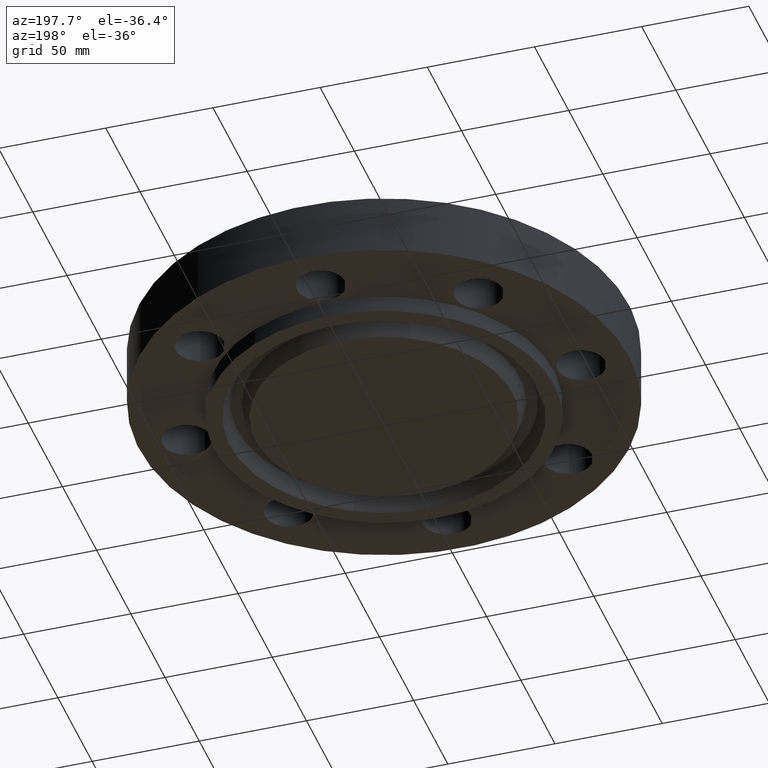
[diagram: clean part render]
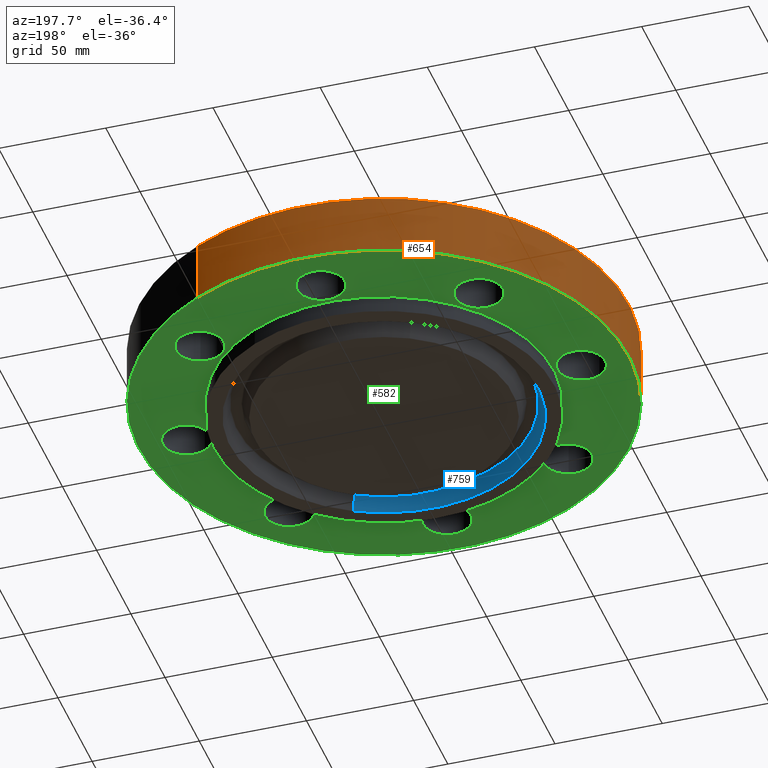
[diagram: same view with three faces highlighted in distinct colors, each labeled with its STEP entity id]
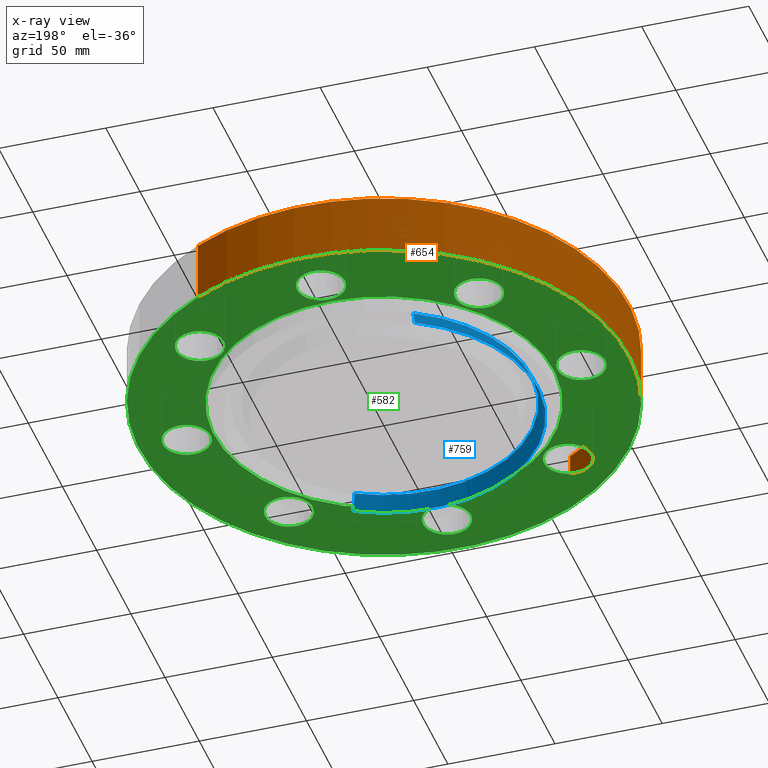
[diagram: x-ray of the same camera — body ghosted, the three highlighted faces saturated]
A machine part, auxiliary view with three faces highlighted in distinct colors.
The next image is the same camera in x-ray (body ghosted, the three faces saturated) — at least one of them is partly hidden behind the body in this view.
Their STEP definitions:

[orange] entity #654 — the highlighted cylindrical surface (partial cylindrical patch) has radius 114.3 mm, axis along (0, 0, -1).
#502=AXIS2_PLACEMENT_3D('Circle Axis2P3D',#500,#501,$) ;
#615=AXIS2_PLACEMENT_3D('Cylinder Axis2P3D',#612,#613,#614) ;
#645=AXIS2_PLACEMENT_3D('Circle Axis2P3D',#643,#644,$) ;
#500=CARTESIAN_POINT('Axis2P3D Location',(0.,0.,0.)) ;
#504=CARTESIAN_POINT('Vertex',(-2.15741492373,-3.94912152852,4.19611851827E-016)) ;
#506=CARTESIAN_POINT('Vertex',(2.15741492373,3.94912152852,4.19611851827E-016)) ;
#612=CARTESIAN_POINT('Axis2P3D Location',(0.,0.,0.403750000002)) ;
#617=CARTESIAN_POINT('Line Origine',(2.15741492373,3.94912152852,0.560000000002)) ;
#621=CARTESIAN_POINT('Vertex',(2.15741492373,3.94912152852,1.12)) ;
#628=CARTESIAN_POINT('Vertex',(-2.15741492373,-3.94912152852,1.12)) ;
#631=CARTESIAN_POINT('Line Origine',(-2.15741492373,-3.94912152852,0.560000000002)) ;
#643=CARTESIAN_POINT('Axis2P3D Location',(0.,0.,1.12)) ;
#501=DIRECTION('Axis2P3D Direction',(0.,0.,-0.0393700787402)) ;
#613=DIRECTION('Axis2P3D Direction',(0.,0.,-0.0393700787402)) ;
#614=DIRECTION('Axis2P3D XDirection',(-0.0188750212049,-0.0345504945626,0.)) ;
#618=DIRECTION('Vector Direction',(0.,0.,-0.0393700787402)) ;
#632=DIRECTION('Vector Direction',(0.,0.,-0.0393700787402)) ;
#644=DIRECTION('Axis2P3D Direction',(0.,0.,-0.0393700787402)) ;
#619=VECTOR('Line Direction',#618,0.0393700787402) ;
#633=VECTOR('Line Direction',#632,0.0393700787402) ;
#649=ORIENTED_EDGE('',*,*,#508,.F.) ;
#650=ORIENTED_EDGE('',*,*,#635,.T.) ;
#651=ORIENTED_EDGE('',*,*,#647,.T.) ;
#652=ORIENTED_EDGE('',*,*,#623,.F.) ;
#654=ADVANCED_FACE('PartBody',(#653),#616,.T.) ;
#503=CIRCLE('generated circle',#502,4.50000000002) ;
#646=CIRCLE('generated circle',#645,4.50000000002) ;
#616=CYLINDRICAL_SURFACE('generated cylinder',#615,4.50000000002) ;
#508=EDGE_CURVE('',#505,#507,#503,.T.) ;
#623=EDGE_CURVE('',#507,#622,#620,.F.) ;
#635=EDGE_CURVE('',#505,#629,#634,.F.) ;
#647=EDGE_CURVE('',#629,#622,#646,.T.) ;
#648=EDGE_LOOP('',(#649,#650,#651,#652)) ;
#653=FACE_OUTER_BOUND('',#648,.T.) ;
#620=LINE('Line',#617,#619) ;
#634=LINE('Line',#631,#633) ;
#505=VERTEX_POINT('',#504) ;
#507=VERTEX_POINT('',#506) ;
#622=VERTEX_POINT('',#621) ;
#629=VERTEX_POINT('',#628) ;

[blue] entity #759 — the highlighted conical surface has half-angle 23 deg.
#79=AXIS2_PLACEMENT_3D('Circle Axis2P3D',#77,#78,$) ;
#705=AXIS2_PLACEMENT_3D('Circle Axis2P3D',#703,#704,$) ;
#741=AXIS2_PLACEMENT_3D('Cone Axis2P3D',#738,#739,#740) ;
#77=CARTESIAN_POINT('Axis2P3D Location',(-2.09805925913E-016,2.79741234551E-016,-0.312500000001)) ;
#81=CARTESIAN_POINT('Vertex',(1.35588733701,-2.48193512242,-0.312500000001)) ;
#83=CARTESIAN_POINT('Vertex',(-1.35588733701,2.48193512242,-0.312500000001)) ;
#703=CARTESIAN_POINT('Axis2P3D Location',(0.,0.,-0.0190701156784)) ;
#707=CARTESIAN_POINT('Vertex',(-1.29617316206,2.37262905836,-0.0190701156784)) ;
#709=CARTESIAN_POINT('Vertex',(1.29617316206,-2.37262905836,-0.0190701156784)) ;
#738=CARTESIAN_POINT('Axis2P3D Location',(0.,0.,-0.0190701156784)) ;
#743=CARTESIAN_POINT('Line Origine',(-1.32603024953,2.42728209039,-0.16578505784)) ;
#748=CARTESIAN_POINT('Line Origine',(1.32603024953,-2.42728209039,-0.16578505784)) ;
#78=DIRECTION('Axis2P3D Direction',(0.,0.,-0.0393700787402)) ;
#704=DIRECTION('Axis2P3D Direction',(0.,0.,0.0393700787402)) ;
#739=DIRECTION('Axis2P3D Direction',(-0.,-0.,-0.0393700787402)) ;
#740=DIRECTION('Axis2P3D XDirection',(-0.0188750212049,0.0345504945626,0.)) ;
#744=DIRECTION('Vector Direction',(-0.00737505833565,0.0134999537303,-0.0362403485611)) ;
#749=DIRECTION('Vector Direction',(0.00737505833565,-0.0134999537303,-0.0362403485611)) ;
#745=VECTOR('Line Direction',#744,0.0393700787402) ;
#750=VECTOR('Line Direction',#749,0.0393700787402) ;
#754=ORIENTED_EDGE('',*,*,#85,.T.) ;
#755=ORIENTED_EDGE('',*,*,#747,.T.) ;
#756=ORIENTED_EDGE('',*,*,#711,.T.) ;
#757=ORIENTED_EDGE('',*,*,#752,.F.) ;
#759=ADVANCED_FACE('PartBody',(#758),#742,.F.) ;
#80=CIRCLE('generated circle',#79,2.82815000001) ;
#706=CIRCLE('generated circle',#705,2.70359640379) ;
#742=CONICAL_SURFACE('Cone',#741,2.70359640379,0.401425727959) ;
#85=EDGE_CURVE('',#82,#84,#80,.T.) ;
#711=EDGE_CURVE('',#708,#710,#706,.T.) ;
#747=EDGE_CURVE('',#84,#708,#746,.F.) ;
#752=EDGE_CURVE('',#82,#710,#751,.F.) ;
#753=EDGE_LOOP('',(#754,#755,#756,#757)) ;
#758=FACE_OUTER_BOUND('',#753,.T.) ;
#746=LINE('Line',#743,#745) ;
#751=LINE('Line',#748,#750) ;
#82=VERTEX_POINT('',#81) ;
#84=VERTEX_POINT('',#83) ;
#708=VERTEX_POINT('',#707) ;
#710=VERTEX_POINT('',#709) ;

[green] entity #582 — the highlighted planar face has unit normal (0, 0, -1).
#112=AXIS2_PLACEMENT_3D('Circle Axis2P3D',#110,#111,$) ;
#138=AXIS2_PLACEMENT_3D('Circle Axis2P3D',#136,#137,$) ;
#169=AXIS2_PLACEMENT_3D('Circle Axis2P3D',#167,#168,$) ;
#195=AXIS2_PLACEMENT_3D('Circle Axis2P3D',#193,#194,$) ;
#226=AXIS2_PLACEMENT_3D('Circle Axis2P3D',#224,#225,$) ;
#252=AXIS2_PLACEMENT_3D('Circle Axis2P3D',#250,#251,$) ;
#283=AXIS2_PLACEMENT_3D('Circle Axis2P3D',#281,#282,$) ;
#309=AXIS2_PLACEMENT_3D('Circle Axis2P3D',#307,#308,$) ;
#340=AXIS2_PLACEMENT_3D('Circle Axis2P3D',#338,#339,$) ;
#366=AXIS2_PLACEMENT_3D('Circle Axis2P3D',#364,#365,$) ;
#397=AXIS2_PLACEMENT_3D('Circle Axis2P3D',#395,#396,$) ;
#423=AXIS2_PLACEMENT_3D('Circle Axis2P3D',#421,#422,$) ;
#454=AXIS2_PLACEMENT_3D('Circle Axis2P3D',#452,#453,$) ;
#480=AXIS2_PLACEMENT_3D('Circle Axis2P3D',#478,#479,$) ;
#498=AXIS2_PLACEMENT_3D('Plane Axis2P3D',#495,#496,#497) ;
#502=AXIS2_PLACEMENT_3D('Circle Axis2P3D',#500,#501,$) ;
#511=AXIS2_PLACEMENT_3D('Circle Axis2P3D',#509,#510,$) ;
#520=AXIS2_PLACEMENT_3D('Circle Axis2P3D',#518,#519,$) ;
#529=AXIS2_PLACEMENT_3D('Circle Axis2P3D',#527,#528,$) ;
#538=AXIS2_PLACEMENT_3D('Circle Axis2P3D',#536,#537,$) ;
#547=AXIS2_PLACEMENT_3D('Circle Axis2P3D',#545,#546,$) ;
#105=CARTESIAN_POINT('Vertex',(2.68713947551,2.14106024462,0.)) ;
#110=CARTESIAN_POINT('Axis2P3D Location',(2.56326208181,2.56326208181,0.)) ;
#114=CARTESIAN_POINT('Vertex',(2.43938468811,2.98546391901,0.)) ;
#136=CARTESIAN_POINT('Axis2P3D Location',(2.56326208181,2.56326208181,0.)) ;
#162=CARTESIAN_POINT('Vertex',(-0.386136327233,-3.41405276303,0.)) ;
#167=CARTESIAN_POINT('Axis2P3D Location',(4.43934464693E-016,-3.62500000001,0.)) ;
#171=CARTESIAN_POINT('Vertex',(0.386136327233,-3.835947237,0.)) ;
#193=CARTESIAN_POINT('Axis2P3D Location',(4.43934464693E-016,-3.62500000001,0.)) ;
#219=CARTESIAN_POINT('Vertex',(-2.14106024462,2.68713947551,0.)) ;
#224=CARTESIAN_POINT('Axis2P3D Location',(-2.56326208181,2.56326208181,0.)) ;
#228=CARTESIAN_POINT('Vertex',(-2.98546391901,2.43938468811,0.)) ;
#250=CARTESIAN_POINT('Axis2P3D Location',(-2.56326208181,2.56326208181,0.)) ;
#276=CARTESIAN_POINT('Vertex',(2.14106024462,-2.68713947551,0.)) ;
#281=CARTESIAN_POINT('Axis2P3D Location',(2.56326208181,-2.56326208181,0.)) ;
#285=CARTESIAN_POINT('Vertex',(2.98546391901,-2.43938468811,0.)) ;
#307=CARTESIAN_POINT('Axis2P3D Location',(2.56326208181,-2.56326208181,0.)) ;
#333=CARTESIAN_POINT('Vertex',(-3.41405276303,0.386136327233,0.)) ;
#338=CARTESIAN_POINT('Axis2P3D Location',(-3.62500000001,-6.65901697039E-016,0.)) ;
#342=CARTESIAN_POINT('Vertex',(-3.835947237,-0.386136327233,0.)) ;
#364=CARTESIAN_POINT('Axis2P3D Location',(-3.62500000001,-6.65901697039E-016,0.)) ;
#390=CARTESIAN_POINT('Vertex',(3.41405276303,-0.386136327233,0.)) ;
#395=CARTESIAN_POINT('Axis2P3D Location',(3.62500000001,2.21967232346E-016,0.)) ;
#399=CARTESIAN_POINT('Vertex',(3.835947237,0.386136327233,0.)) ;
#421=CARTESIAN_POINT('Axis2P3D Location',(3.62500000001,2.21967232346E-016,0.)) ;
#447=CARTESIAN_POINT('Vertex',(-2.68713947551,-2.14106024462,0.)) ;
#452=CARTESIAN_POINT('Axis2P3D Location',(-2.56326208181,-2.56326208181,0.)) ;
#456=CARTESIAN_POINT('Vertex',(-2.43938468811,-2.98546391901,0.)) ;
#478=CARTESIAN_POINT('Axis2P3D Location',(-2.56326208181,-2.56326208181,0.)) ;
#495=CARTESIAN_POINT('Axis2P3D Location',(0.,3.12500000001,0.)) ;
#500=CARTESIAN_POINT('Axis2P3D Location',(0.,0.,0.)) ;
#504=CARTESIAN_POINT('Vertex',(-2.15741492373,-3.94912152852,4.19611851827E-016)) ;
#506=CARTESIAN_POINT('Vertex',(2.15741492373,3.94912152852,4.19611851827E-016)) ;
#509=CARTESIAN_POINT('Axis2P3D Location',(0.,0.,0.)) ;
#518=CARTESIAN_POINT('Axis2P3D Location',(-8.74191357973E-017,3.62500000001,0.)) ;
#522=CARTESIAN_POINT('Vertex',(0.386136327233,3.41405276303,0.)) ;
#524=CARTESIAN_POINT('Vertex',(-0.386136327233,3.835947237,0.)) ;
#527=CARTESIAN_POINT('Axis2P3D Location',(8.74191357973E-017,3.62500000001,0.)) ;
#536=CARTESIAN_POINT('Axis2P3D Location',(0.,0.,0.)) ;
#540=CARTESIAN_POINT('Vertex',(1.49820480814,2.74244550592,2.79741234551E-016)) ;
#542=CARTESIAN_POINT('Vertex',(-1.49820480814,-2.74244550592,2.79741234551E-016)) ;
#545=CARTESIAN_POINT('Axis2P3D Location',(0.,0.,0.)) ;
#111=DIRECTION('Axis2P3D Direction',(0.,-0.,-0.0393700787402)) ;
#137=DIRECTION('Axis2P3D Direction',(0.,-0.,-0.0393700787402)) ;
#168=DIRECTION('Axis2P3D Direction',(-0.,0.,-0.0393700787402)) ;
#194=DIRECTION('Axis2P3D Direction',(-0.,0.,-0.0393700787402)) ;
#225=DIRECTION('Axis2P3D Direction',(0.,0.,-0.0393700787402)) ;
#251=DIRECTION('Axis2P3D Direction',(0.,0.,-0.0393700787402)) ;
#282=DIRECTION('Axis2P3D Direction',(-0.,0.,-0.0393700787402)) ;
#308=DIRECTION('Axis2P3D Direction',(-0.,0.,-0.0393700787402)) ;
#339=DIRECTION('Axis2P3D Direction',(0.,0.,-0.0393700787402)) ;
#365=DIRECTION('Axis2P3D Direction',(0.,0.,-0.0393700787402)) ;
#396=DIRECTION('Axis2P3D Direction',(0.,-0.,-0.0393700787402)) ;
#422=DIRECTION('Axis2P3D Direction',(0.,-0.,-0.0393700787402)) ;
#453=DIRECTION('Axis2P3D Direction',(0.,0.,-0.0393700787402)) ;
#479=DIRECTION('Axis2P3D Direction',(0.,0.,-0.0393700787402)) ;
#496=DIRECTION('Axis2P3D Direction',(0.,0.,-0.0393700787402)) ;
#497=DIRECTION('Axis2P3D XDirection',(0.0393700787402,0.,0.)) ;
#501=DIRECTION('Axis2P3D Direction',(0.,0.,-0.0393700787402)) ;
#510=DIRECTION('Axis2P3D Direction',(0.,0.,-0.0393700787402)) ;
#519=DIRECTION('Axis2P3D Direction',(0.,0.,-0.0393700787402)) ;
#528=DIRECTION('Axis2P3D Direction',(0.,0.,-0.0393700787402)) ;
#537=DIRECTION('Axis2P3D Direction',(0.,0.,-0.0393700787402)) ;
#546=DIRECTION('Axis2P3D Direction',(0.,0.,-0.0393700787402)) ;
#515=ORIENTED_EDGE('',*,*,#508,.T.) ;
#516=ORIENTED_EDGE('',*,*,#513,.T.) ;
#533=ORIENTED_EDGE('',*,*,#526,.F.) ;
#534=ORIENTED_EDGE('',*,*,#531,.F.) ;
#551=ORIENTED_EDGE('',*,*,#544,.F.) ;
#552=ORIENTED_EDGE('',*,*,#549,.F.) ;
#555=ORIENTED_EDGE('',*,*,#140,.F.) ;
#556=ORIENTED_EDGE('',*,*,#116,.F.) ;
#559=ORIENTED_EDGE('',*,*,#425,.F.) ;
#560=ORIENTED_EDGE('',*,*,#401,.F.) ;
#563=ORIENTED_EDGE('',*,*,#311,.F.) ;
#564=ORIENTED_EDGE('',*,*,#287,.F.) ;
#567=ORIENTED_EDGE('',*,*,#197,.F.) ;
#568=ORIENTED_EDGE('',*,*,#173,.F.) ;
#571=ORIENTED_EDGE('',*,*,#482,.F.) ;
#572=ORIENTED_EDGE('',*,*,#458,.F.) ;
#575=ORIENTED_EDGE('',*,*,#368,.F.) ;
#576=ORIENTED_EDGE('',*,*,#344,.F.) ;
#579=ORIENTED_EDGE('',*,*,#254,.F.) ;
#580=ORIENTED_EDGE('',*,*,#230,.F.) ;
#535=FACE_BOUND('',#532,.T.) ;
#553=FACE_BOUND('',#550,.T.) ;
#557=FACE_BOUND('',#554,.T.) ;
#561=FACE_BOUND('',#558,.T.) ;
#565=FACE_BOUND('',#562,.T.) ;
#569=FACE_BOUND('',#566,.T.) ;
#573=FACE_BOUND('',#570,.T.) ;
#577=FACE_BOUND('',#574,.T.) ;
#581=FACE_BOUND('',#578,.T.) ;
#582=ADVANCED_FACE('PartBody',(#517,#535,#553,#557,#561,#565,#569,#573,#577,#581),#499,.T.) ;
#113=CIRCLE('generated circle',#112,0.440000000002) ;
#139=CIRCLE('generated circle',#138,0.440000000002) ;
#170=CIRCLE('generated circle',#169,0.440000000002) ;
#196=CIRCLE('generated circle',#195,0.440000000002) ;
#227=CIRCLE('generated circle',#226,0.440000000002) ;
#253=CIRCLE('generated circle',#252,0.440000000002) ;
#284=CIRCLE('generated circle',#283,0.440000000002) ;
#310=CIRCLE('generated circle',#309,0.440000000002) ;
#341=CIRCLE('generated circle',#340,0.440000000002) ;
#367=CIRCLE('generated circle',#366,0.440000000002) ;
#398=CIRCLE('generated circle',#397,0.440000000002) ;
#424=CIRCLE('generated circle',#423,0.440000000002) ;
#455=CIRCLE('generated circle',#454,0.440000000002) ;
#481=CIRCLE('generated circle',#480,0.440000000002) ;
#503=CIRCLE('generated circle',#502,4.50000000002) ;
#512=CIRCLE('generated circle',#511,4.50000000002) ;
#521=CIRCLE('generated circle',#520,0.440000000002) ;
#530=CIRCLE('generated circle',#529,0.440000000002) ;
#539=CIRCLE('generated circle',#538,3.12500000001) ;
#548=CIRCLE('generated circle',#547,3.12500000001) ;
#116=EDGE_CURVE('',#106,#115,#113,.T.) ;
#140=EDGE_CURVE('',#115,#106,#139,.T.) ;
#173=EDGE_CURVE('',#163,#172,#170,.T.) ;
#197=EDGE_CURVE('',#172,#163,#196,.T.) ;
#230=EDGE_CURVE('',#220,#229,#227,.T.) ;
#254=EDGE_CURVE('',#229,#220,#253,.T.) ;
#287=EDGE_CURVE('',#277,#286,#284,.T.) ;
#311=EDGE_CURVE('',#286,#277,#310,.T.) ;
#344=EDGE_CURVE('',#334,#343,#341,.T.) ;
#368=EDGE_CURVE('',#343,#334,#367,.T.) ;
#401=EDGE_CURVE('',#391,#400,#398,.T.) ;
#425=EDGE_CURVE('',#400,#391,#424,.T.) ;
#458=EDGE_CURVE('',#448,#457,#455,.T.) ;
#482=EDGE_CURVE('',#457,#448,#481,.T.) ;
#508=EDGE_CURVE('',#505,#507,#503,.T.) ;
#513=EDGE_CURVE('',#507,#505,#512,.T.) ;
#526=EDGE_CURVE('',#523,#525,#521,.T.) ;
#531=EDGE_CURVE('',#525,#523,#530,.T.) ;
#544=EDGE_CURVE('',#541,#543,#539,.T.) ;
#549=EDGE_CURVE('',#543,#541,#548,.T.) ;
#514=EDGE_LOOP('',(#515,#516)) ;
#532=EDGE_LOOP('',(#533,#534)) ;
#550=EDGE_LOOP('',(#551,#552)) ;
#554=EDGE_LOOP('',(#555,#556)) ;
#558=EDGE_LOOP('',(#559,#560)) ;
#562=EDGE_LOOP('',(#563,#564)) ;
#566=EDGE_LOOP('',(#567,#568)) ;
#570=EDGE_LOOP('',(#571,#572)) ;
#574=EDGE_LOOP('',(#575,#576)) ;
#578=EDGE_LOOP('',(#579,#580)) ;
#517=FACE_OUTER_BOUND('',#514,.T.) ;
#499=PLANE('',#498) ;
#106=VERTEX_POINT('',#105) ;
#115=VERTEX_POINT('',#114) ;
#163=VERTEX_POINT('',#162) ;
#172=VERTEX_POINT('',#171) ;
#220=VERTEX_POINT('',#219) ;
#229=VERTEX_POINT('',#228) ;
#277=VERTEX_POINT('',#276) ;
#286=VERTEX_POINT('',#285) ;
#334=VERTEX_POINT('',#333) ;
#343=VERTEX_POINT('',#342) ;
#391=VERTEX_POINT('',#390) ;
#400=VERTEX_POINT('',#399) ;
#448=VERTEX_POINT('',#447) ;
#457=VERTEX_POINT('',#456) ;
#505=VERTEX_POINT('',#504) ;
#507=VERTEX_POINT('',#506) ;
#523=VERTEX_POINT('',#522) ;
#525=VERTEX_POINT('',#524) ;
#541=VERTEX_POINT('',#540) ;
#543=VERTEX_POINT('',#542) ;